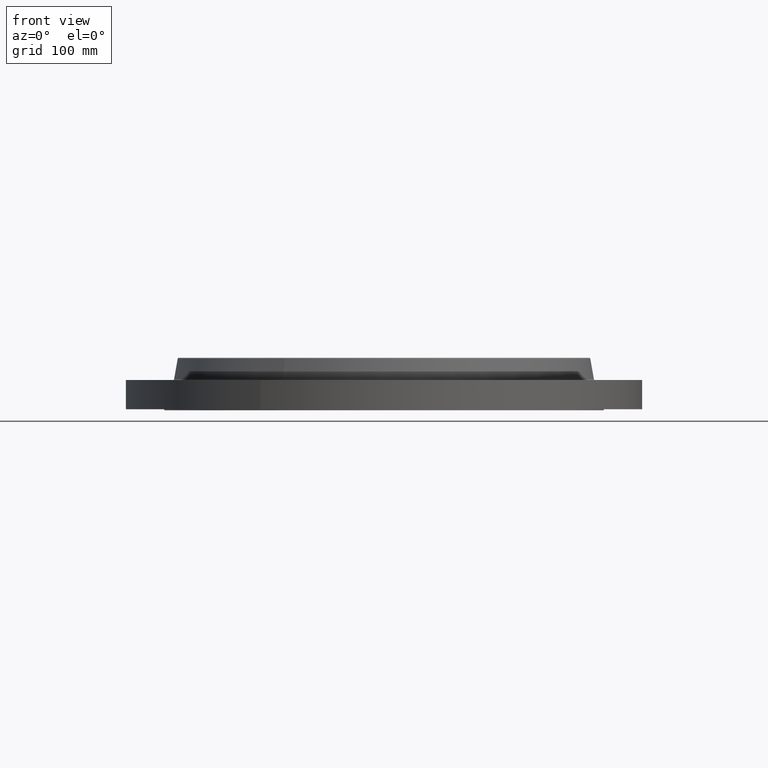
[diagram: clean part render]
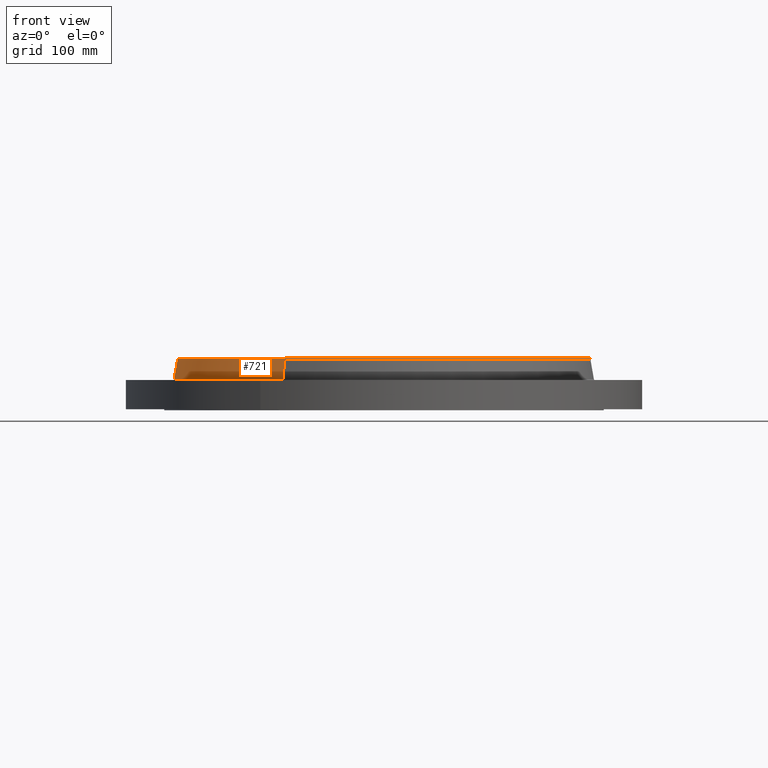
[diagram: same view with one face highlighted and labeled with its STEP entity id]
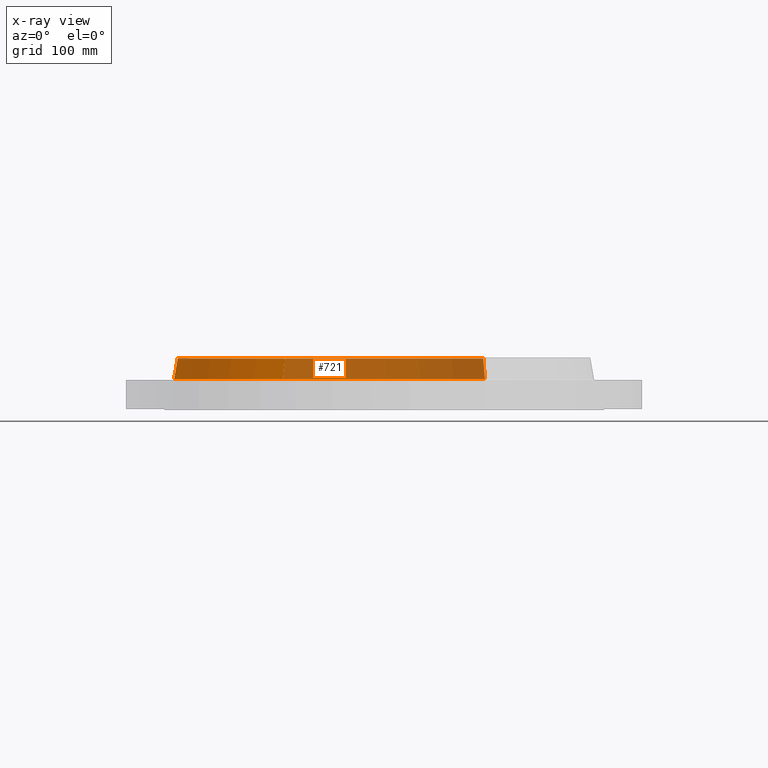
[diagram: x-ray of the same camera — body ghosted, the highlighted face saturated]
A machine part, front view. The second image highlights one B-rep face of the part: STEP entity #721.
The next image is the same camera in x-ray: the body ghosted, the highlighted face saturated — about 65% of this face is hidden behind the body in this view.
In plain terms, the highlighted conical surface has half-angle 10 deg.
Its self-contained STEP definition (entity closure, byte-faithful):
#669=AXIS2_PLACEMENT_3D('Circle Axis2P3D',#667,#668,$) ;
#682=AXIS2_PLACEMENT_3D('Cone Axis2P3D',#679,#680,#681) ;
#712=AXIS2_PLACEMENT_3D('Circle Axis2P3D',#710,#711,$) ;
#640=CARTESIAN_POINT('Vertex',(6.25710616251,11.4535560039,1.85958110935)) ;
#647=CARTESIAN_POINT('Vertex',(-6.25710616251,-11.4535560039,1.85958110935)) ;
#667=CARTESIAN_POINT('Axis2P3D Location',(0.,0.,1.85958110935)) ;
#679=CARTESIAN_POINT('Axis2P3D Location',(0.,0.,3.14041889067)) ;
#684=CARTESIAN_POINT('Line Origine',(6.20296793039,11.3544566347,2.50000000001)) ;
#688=CARTESIAN_POINT('Vertex',(6.14882969826,11.2553572656,3.14041889067)) ;
#695=CARTESIAN_POINT('Vertex',(-6.14882969826,-11.2553572656,3.14041889067)) ;
#698=CARTESIAN_POINT('Line Origine',(-6.20296793039,-11.3544566347,2.50000000001)) ;
#710=CARTESIAN_POINT('Axis2P3D Location',(0.,0.,3.14041889067)) ;
#668=DIRECTION('Axis2P3D Direction',(0.,0.,-0.0393700787402)) ;
#680=DIRECTION('Axis2P3D Direction',(0.,0.,-0.0393700787402)) ;
#681=DIRECTION('Axis2P3D XDirection',(-0.0188750212049,-0.0345504945626,0.)) ;
#685=DIRECTION('Vector Direction',(0.00327761303565,0.00599963041829,-0.03877195878)) ;
#699=DIRECTION('Vector Direction',(-0.00327761303565,-0.00599963041829,-0.03877195878)) ;
#711=DIRECTION('Axis2P3D Direction',(0.,0.,-0.0393700787402)) ;
#686=VECTOR('Line Direction',#685,0.0393700787402) ;
#700=VECTOR('Line Direction',#699,0.0393700787402) ;
#716=ORIENTED_EDGE('',*,*,#671,.F.) ;
#717=ORIENTED_EDGE('',*,*,#702,.T.) ;
#718=ORIENTED_EDGE('',*,*,#714,.T.) ;
#719=ORIENTED_EDGE('',*,*,#690,.F.) ;
#721=ADVANCED_FACE('PartBody',(#720),#683,.T.) ;
#670=CIRCLE('generated circle',#669,13.0512575127) ;
#713=CIRCLE('generated circle',#712,12.825411254) ;
#683=CONICAL_SURFACE('Cone',#682,12.825411254,0.174532925199) ;
#671=EDGE_CURVE('',#648,#641,#670,.T.) ;
#690=EDGE_CURVE('',#641,#689,#687,.F.) ;
#702=EDGE_CURVE('',#648,#696,#701,.F.) ;
#714=EDGE_CURVE('',#696,#689,#713,.T.) ;
#715=EDGE_LOOP('',(#716,#717,#718,#719)) ;
#720=FACE_OUTER_BOUND('',#715,.T.) ;
#687=LINE('Line',#684,#686) ;
#701=LINE('Line',#698,#700) ;
#641=VERTEX_POINT('',#640) ;
#648=VERTEX_POINT('',#647) ;
#689=VERTEX_POINT('',#688) ;
#696=VERTEX_POINT('',#695) ;